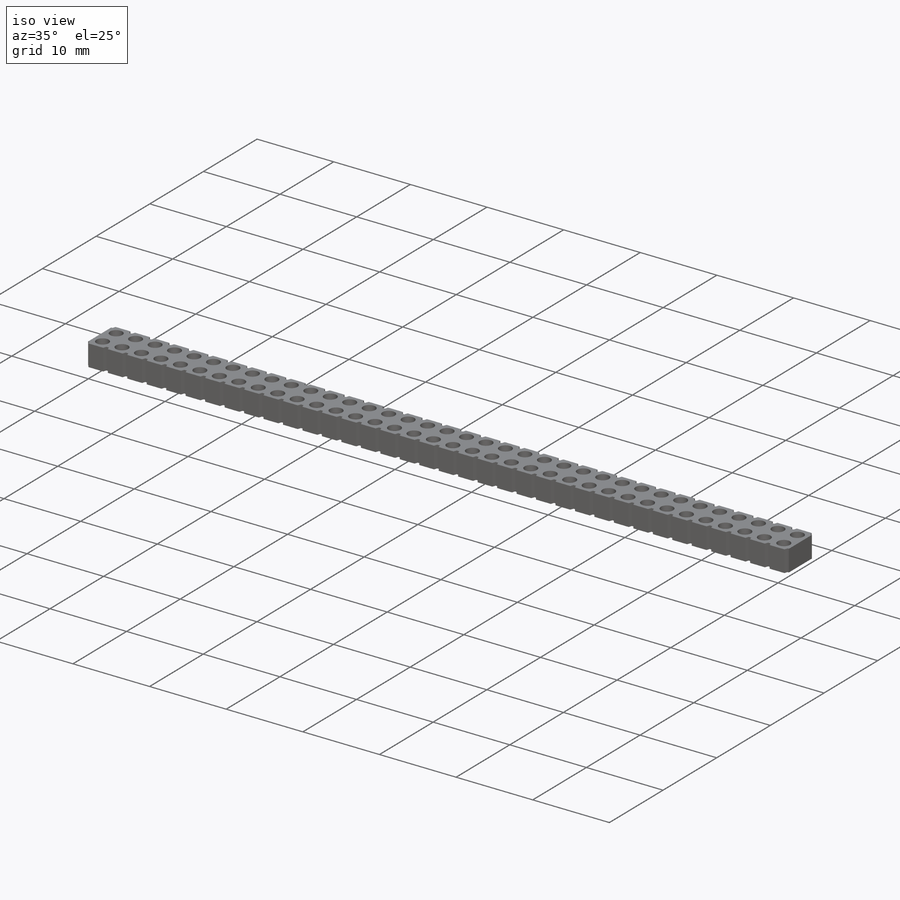
[diagram: iso view]
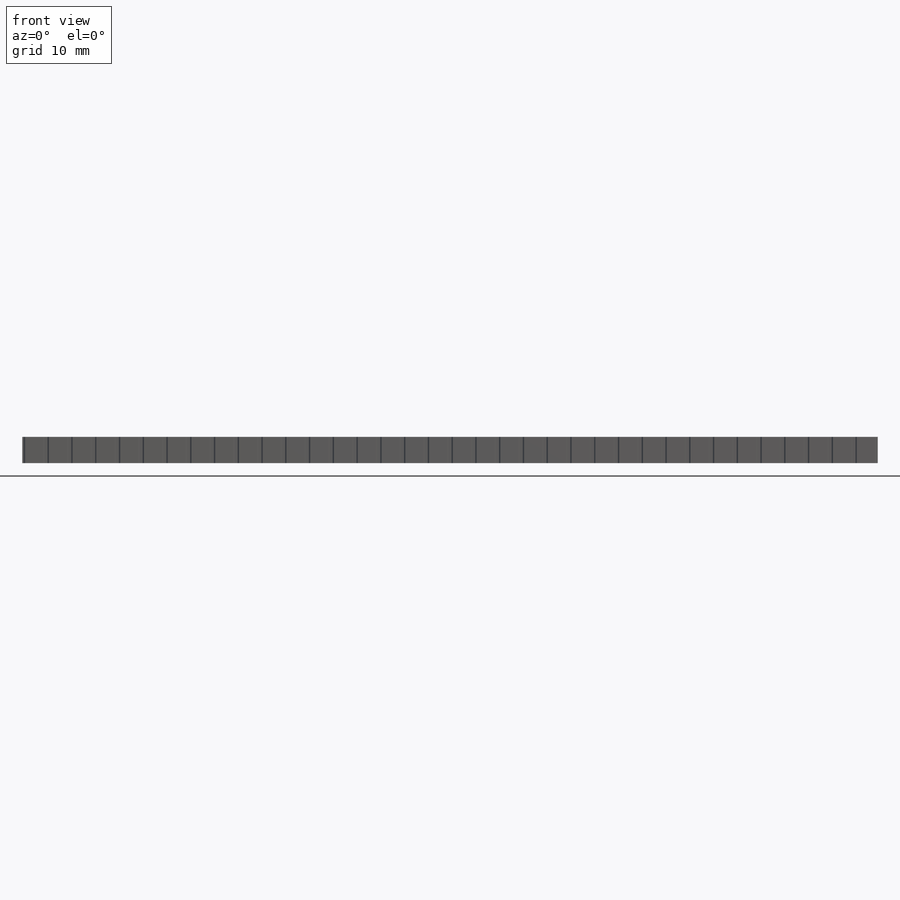
[diagram: front view]
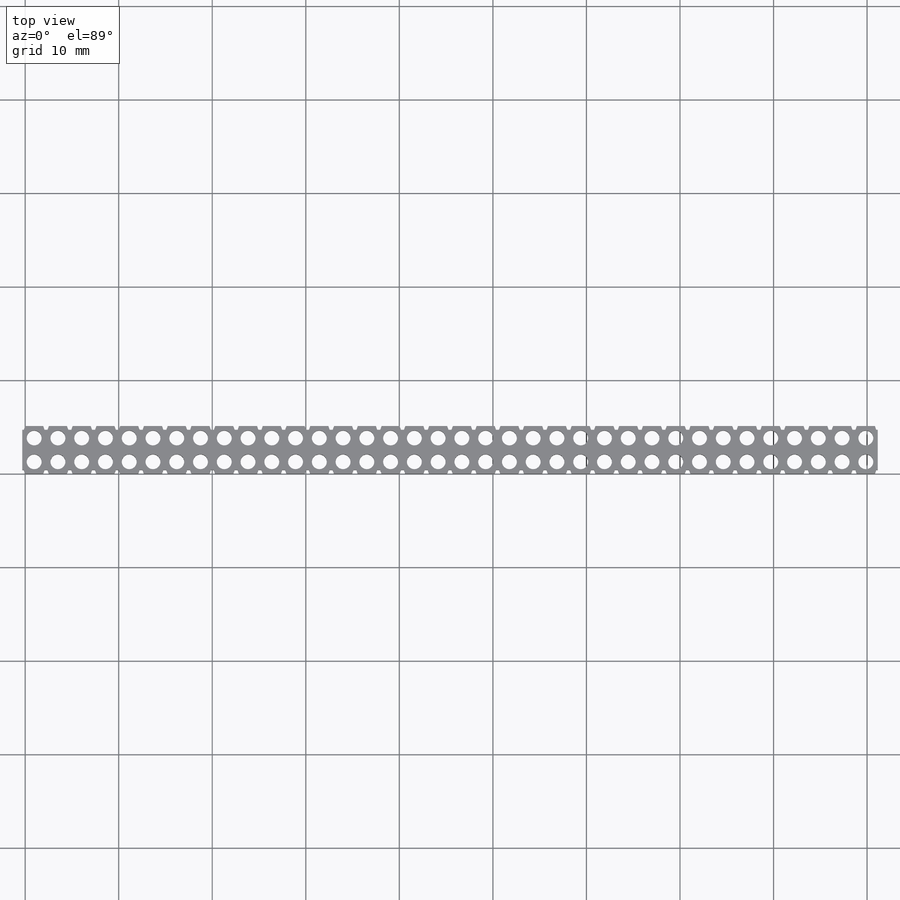
[diagram: top view]
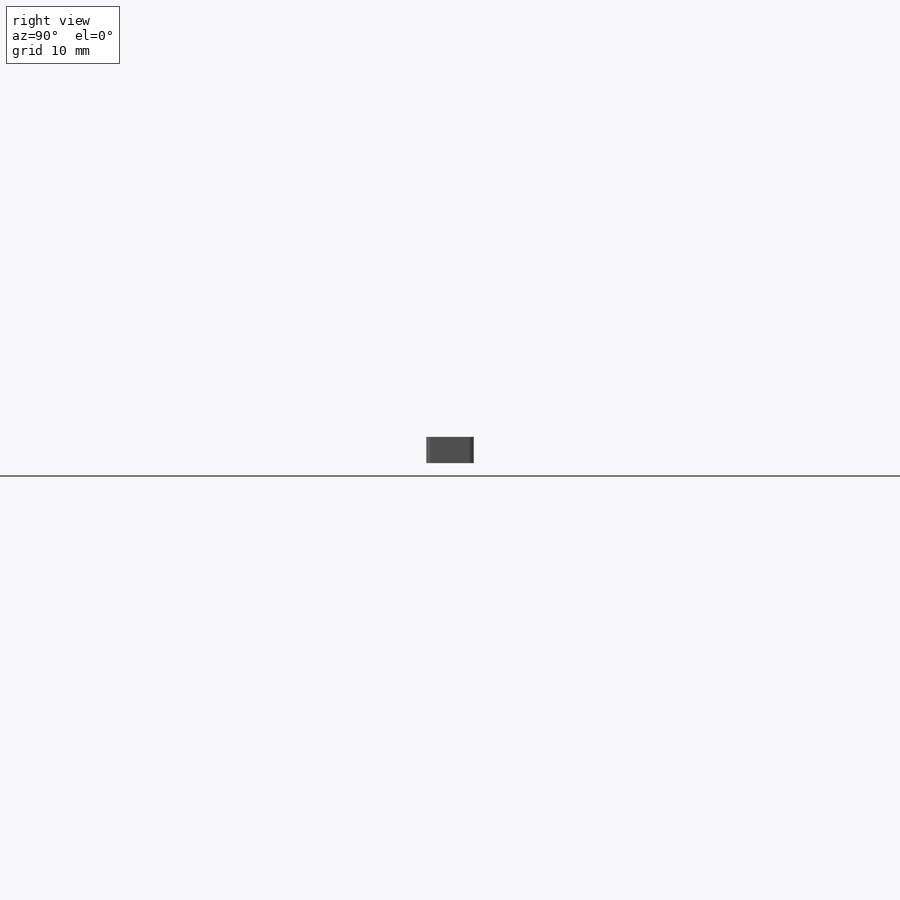
[diagram: right view]
SOLIDWORKS PART (.sldprt)
format: sldprt  version: not decoded by parser v0  size: 762,880 bytes
history: native  units: mm
features: sketch x4, pattern_linear x2, material x1, extrude x1, hole x1, cut_extrude x1 (+14 scaffold rows collapsed)
feature tree (24):
  scaffold x14  (default folders/planes/origin — collapsed)
  material  "Nylon 46"
  sketch  "Sketch1"  dims[c1.D1=2.54mm c1.D2=22.86mm c1.D3=0.508mm c1.D4=0.508mm c2.D4=45.0deg c2.D5=2.54mm c2.D6=~0.409273mm c3.D6=45.0deg c3.D7=~0.409273mm c4.D7=140.0deg c5.D7=0.508mm c5.D8=2.54mm c5.D9=2.54mm c5.D1=22.86mm c5.D2=2.54mm c5.D10=0.508mm c5.D11=0.508mm c5.D12=1.524mm c6.D1=~22.853565mm c6.D2=2.54mm c6.D3=0.508mm c6.D7=0.508mm c6.D8=2.54mm c6.D9=~0.549855mm c6.D5=0.508mm c7.D7=~0.552792mm c8.D7=~246.77621deg c9.D7=1.524mm c10.D7=22.5deg c10.D9=~0.211544mm c11.D9=22.5deg c11.D10=~2.533565mm c11.D11=0.508mm c12.D11=45.0deg c12.D1=~22.853565mm c12.D3=2.54mm c12.D4=~2.533565mm c12.D5=0.508mm c13.D5=45.0deg c13.D6=0.508mm c13.D7=0.508mm c13.D8=0.508mm c14.D8=45.0deg c14.D9=0.508mm c15.D9=45.0deg c15.D5=0.508mm c16.D5=45.0deg c17.D5=0.508mm c18.D5=45.0deg c18.D1=~12.693565mm c18.D2=2.54mm c18.D9=~0.420841mm c18.D10=0.508mm c19.D10=45.0deg c19.D9=~0.388806mm c19.D5=0.508mm c20.D5=45.0deg c20.D6=0.508mm c20.D9=~0.510713mm c21.D6=0.508mm c21.D9=0.508mm c21.D1=~12.693565mm c21.D10=~0.549855mm c22.D10=67.5deg c23.D10=~0.549855mm c24.D10=67.5deg c24.D11=~0.549855mm c25.D11=247.5deg c26.D11=~0.549855mm c27.D11=67.5deg c28.D11=~0.549855mm c29.D11=67.5deg c30.D11=~0.21042mm c31.D11=22.5deg c32.D11=0.508mm c33.D11=247.5deg c33.D2=~7.613565mm c34.D11=2.54mm c34.D6=0.508mm c34.D1=2.54mm c34.D5=0.508mm c35.D5=45.0deg c35.D9=~2.112724mm c36.D9=90.0deg c37.D9=0.508mm c37.D10=~0.549855mm c38.D10=67.5deg c38.D5=0.508mm c39.D5=45.0deg c39.D10=0.508mm c40.D10=45.0deg c40.D5=0.508mm c41.D5=45.0deg c42.D5=0.508mm c43.D5=45.0deg c43.D8=~0.21042mm c44.D8=157.5deg c45.D8=0.508mm c46.D8=45.0deg c46.D10=0.508mm c46.D9=0.508mm c47.D10=0.508mm c48.D10=67.5deg c49.D10=0.508mm c50.D10=67.5deg c51.D10=0.508mm c51.D7=0.508mm c51.D9=0.508mm c51.D1=~2.533565mm c51.D2=2.54mm c51.D3=0.508mm c52.D3=45.0deg c52.D4=0.508mm c53.D4=45.0deg c53.D5=0.508mm c53.D6=2.54mm c53.D7=~7.613565mm c53.D8=~2.112724mm c54.D8=270.0deg c55.D8=0.508mm c55.D9=0.508mm c55.D10=~5.073565mm c55.D2=~2.533565mm c56.D10=2.54mm c56.D11=~2.533565mm c56.D12=~0.420841mm c56.D13=0.508mm c57.D13=67.5deg c57.D5=10.16mm c57.D6=2.54mm c57.D7=0.508mm c57.D10=~0.549855mm c58.D10=67.5deg c58.D13=~0.21042mm c58.D14=~0.078037mm c59.D13=~0.21042mm c59.D7=0.381mm c59.D2=0.381mm c59.D8=~0.509596mm c60.D8=~48.38734deg c60.D9=2.54mm c60.D6=2.54mm c60.D1=2.54mm c60.D4=~0.449566mm c61.D4=45.0deg c61.D8=~0.549855mm c62.D8=67.5deg c62.D9=~0.471688mm c63.D9=67.5deg c63.D10=~0.412391mm c64.D10=67.5deg c64.D11=~0.258811mm c65.D11=67.5deg c65.D12=2.54mm c65.D10=~0.412391mm c66.D10=67.5deg c66.D13=2.54mm c66.D6=~0.412391mm c67.D6=70.0deg c67.D10=0.381mm c68.D10=70.0deg c68.D11=2.54mm c68.D3=~0.40005mm c68.D4=~0.412391mm c69.D4=70.0deg c69.D7=0.381mm c70.D7=70.0deg c70.D6=~0.138673mm c71.D6=20.0deg c71.D4=1.778mm c72.D4=20.0deg c72.D2=~0.40005mm c72.D3=~1.737444mm c73.D3=20.0deg c73.D4=~0.425724mm c74.D4=20.0deg c74.INSLENGTH=15.24mm c74.D2=5.08mm c74.D3=~0.40005mm c75.D3=70.0deg c76.D3=~0.425724mm c77.D3=20.0deg c77.D4=~0.40005mm c77.D5=1.7399mm c77.D6=~0.425724mm c78.D6=70.0deg c79.D6=~0.425724mm c80.D6=20.0deg c80.D7=~0.40005mm c80.D5=~0.40005mm c81.D7=1.7399mm c82.D7=20.0deg c83.D7=~0.16002mm c83.D8=1.7399mm c84.D8=20.0deg c84.D4=~0.16002mm]
  extrude  "Extrude1"  Depth=2.794mm
  hole  "Hole1"  Diameter=1.60274mm Depth=2.794mm
  sketch  "3DSketch2"  dims[c1.D1=~1.171514mm c1.D2=1.27mm c2.D2=~1.133263mm c2.D3=1.27mm c2.D1=1.27mm c3.D3=1.27mm c3.D2=1.27mm c3.D1=1.27mm c4.D1=1.27mm c4.D2=1.27mm]
  sketch  "Sketch3"  dims[Diameter=~1.60274mm Depth=2.794mm]
  sketch  "Sketch4"  dims[c1.D1=0.381mm c1.D2=2.54mm c1.D3=0.381mm c2.D3=45.0deg c3.D3=0.381mm c4.D3=45.0deg c4.D4=~0.15748mm c4.D5=~0.316721mm c4.D2=2.54mm c4.D1=0.381mm c5.D5=~2.69748mm c5.D3=0.381mm c6.D3=45.0deg c6.D4=~0.315631mm c6.D5=~0.158151mm c6.D2=2.54mm c7.D5=0.381mm c7.D1=0.381mm c7.D4=0.1651mm c8.D5=0.1651mm c8.D6=2.54mm c8.D7=~0.38019mm c9.D7=45.0deg c9.D8=0.1651mm c9.D9=0.1651mm c9.D10=0.381mm c9.D11=1.778mm c9.D1=~0.703179mm c10.D1=70.0deg c11.D1=~0.703179mm c12.D1=20.0deg c13.D1=1.651mm c13.D2=2.159mm c13.D3=0.762mm c13.D4=~0.40005mm c13.D5=0.4445mm c14.D5=40.0deg c14.D6=0.4445mm c15.D6=40.0deg c15.D7=~0.43843mm c15.D8=1.651mm c15.D1=0.4445mm c15.D2=~0.319786mm c15.D3=~0.40005mm c16.D3=~57.048865deg c17.D3=~0.40005mm c18.D3=~44.037936deg c19.D3=~0.40005mm c20.D3=~44.037936deg c20.D2=~0.319786mm c20.D1=~0.40005mm c21.D3=~0.40005mm c22.D3=~44.037936deg c22.D1=~0.512773mm c23.D1=20.0deg c24.D1=~0.40005mm c24.D2=~0.319989mm c24.D3=~0.40005mm c25.D3=40.0deg c25.D4=~0.611202mm c25.D5=~0.40005mm c25.D6=~0.40005mm c26.D6=40.0deg c27.D6=~0.40005mm c28.D6=40.0deg c29.D6=~2.234399mm c29.D7=~2.380005mm c29.D2=~0.40005mm c30.D2=40.0deg c31.D2=~0.319989mm c31.D6=~0.319989mm c31.D4=~0.611202mm c32.D6=2.54mm c32.D5=~0.40005mm c33.D6=~2.234399mm c33.D7=~0.40005mm c34.D7=40.0deg c35.D7=~0.319989mm c35.D5=~0.40005mm c35.D1=~0.40005mm c36.D7=~0.40005mm c37.D7=70.0deg c38.D7=~0.145606mm c38.D3=~0.425724mm c39.D3=70.0deg c40.D3=~0.40005mm c41.D3=40.0deg c42.D3=~0.40005mm c43.D3=70.0deg c44.D3=~0.40005mm c45.D3=70.0deg c46.D3=~0.40005mm c47.D3=70.0deg c48.D3=~0.40005mm c49.D3=40.0deg c50.D3=~0.611202mm c51.D3=70.0deg c51.D1=0.381mm c52.D3=1.27mm c52.D2=~0.159995mm]
  cut_extrude  "Extrude2"  Depth=2.794mm
  pattern_linear  "LPattern1"  Count1=6 Count2=2 Spacing1=2.54mm Spacing2=2.54mm
  pattern_linear  "LPattern2"  Count1=35 Count2=1 Spacing1=2.54mm Spacing2=50mm
decode coverage: 9 of 9 modeling features carry decoded parameters
note: ~ marks probable driven/reference dimensions
note: suppression state not decoded; provenance and decode notes live in map.json
